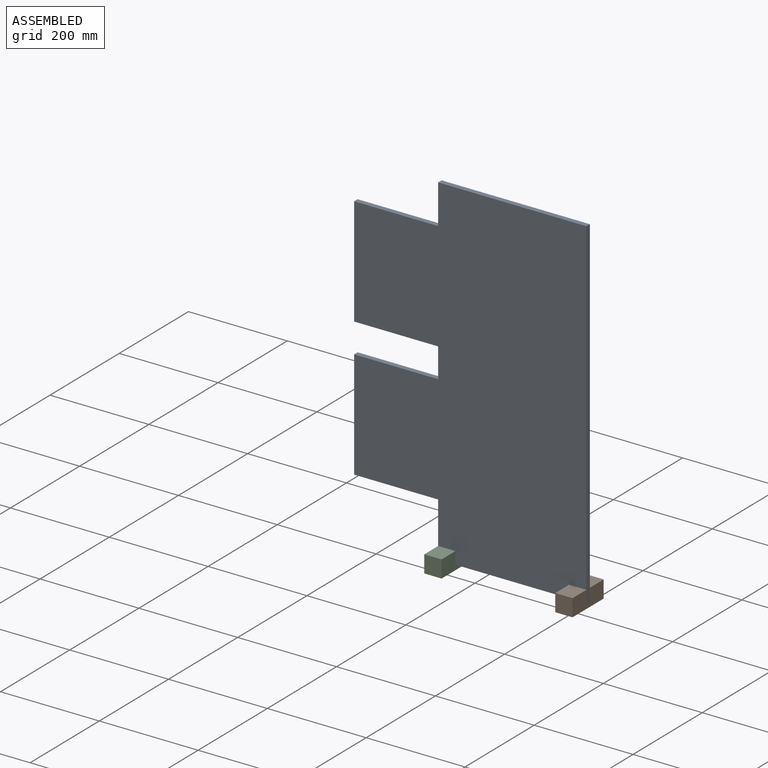
[diagram: assembled view]
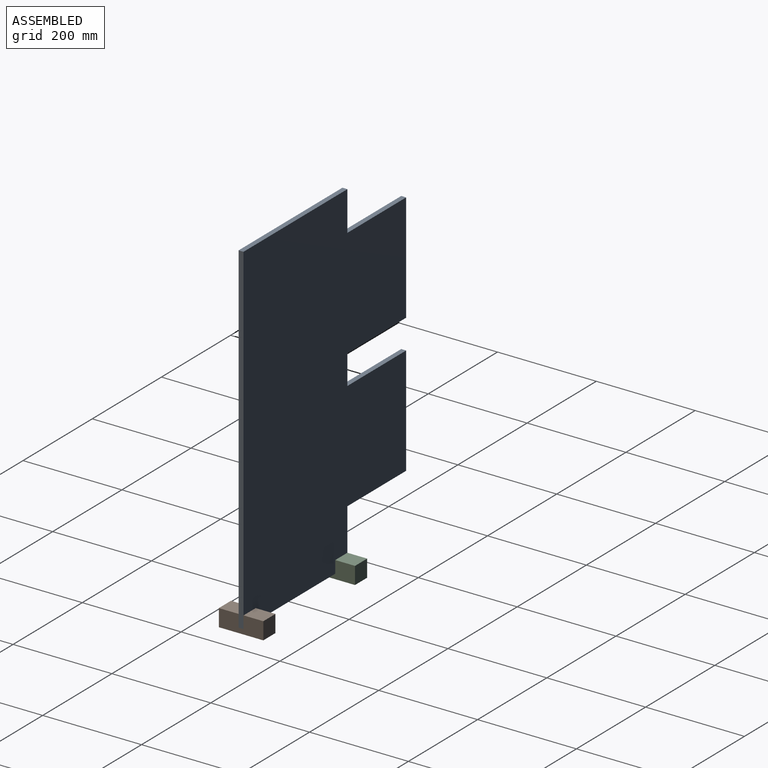
[diagram: assembled view, second angle]
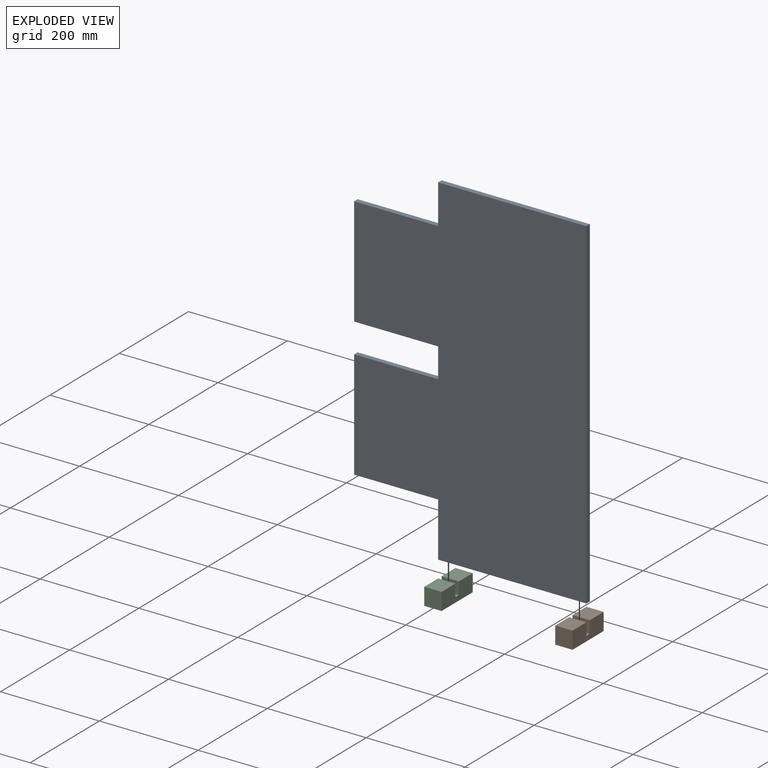
[diagram: exploded view]
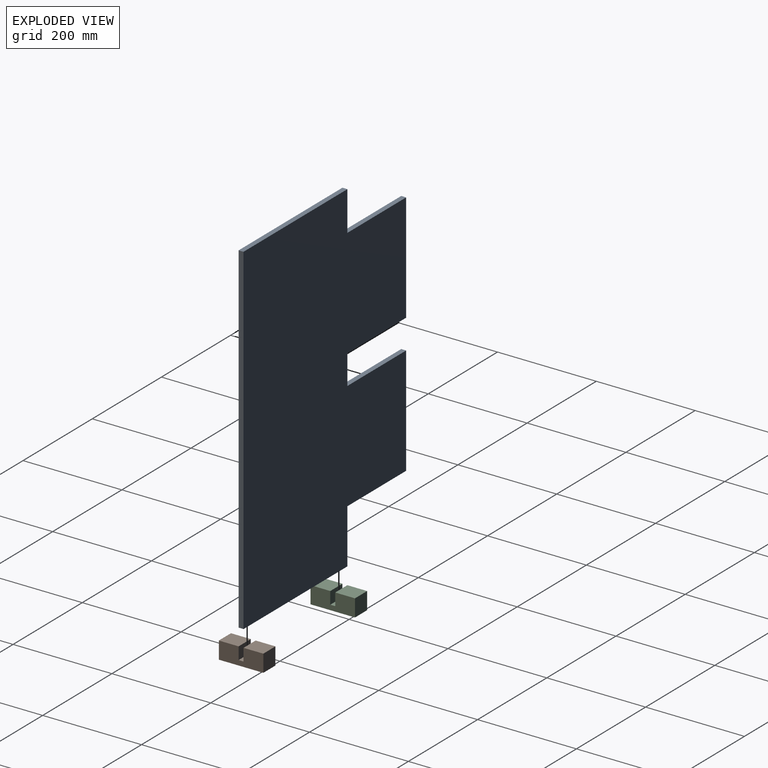
[diagram: exploded view, second angle]
ASSEMBLY  parts=3 mates=2
PART A: 14 faces, bbox 470x10x690 mm
  f0: plane 690x470mm, normal (0,1,0), area 281800mm2, adj f1,f3,f4,f5,f6,f7,f8,f9
  f1: plane 220x10mm, normal (-1,0,0), area 2200mm2, adj f0,f2,f11,f12
  f2: plane 690x470mm, normal (0,-1,0), area 281800mm2, adj f1,f3,f4,f5,f6,f7,f8,f9
  f3: plane 220x10mm, normal (-1,0,0), area 2200mm2, adj f0,f2,f8,f9
  f4: plane 300x10mm, normal (0,0,-1), area 3000mm2, adj f0,f2,f5,f7
  f5: plane 690x10mm, normal (1,0,0), area 6900mm2, adj f0,f2,f4,f6
  f6: plane 300x10mm, normal (0,0,1), area 3000mm2, adj f0,f2,f5,f13
  f7: plane 110x10mm, normal (-1,0,0), area 1100mm2, adj f0,f2,f4,f8
  f8: plane 170x10mm, normal (0,0,-1), area 1700mm2, adj f0,f2,f3,f7
  f9: plane 170x10mm, normal (0,0,1), area 1700mm2, adj f0,f2,f3,f10
  f10: plane 60x10mm, normal (-1,0,0), area 600mm2, adj f0,f2,f9,f11
  f11: plane 170x10mm, normal (0,0,-1), area 1700mm2, adj f0,f1,f2,f10
  f12: plane 170x10mm, normal (0,0,1), area 1700mm2, adj f0,f1,f2,f13
  f13: plane 80x10mm, normal (-1,0,0), area 800mm2, adj f0,f2,f6,f12
PART B: 10 faces, bbox 35x90x35 mm
  f0: plane 40x35mm, normal (0,0,1), area 1400mm2, adj f1,f2,f5,f9
  f1: plane 90x35mm, normal (-1,0,0), area 2900mm2, adj f0,f3,f4,f5,f6,f7,f8,f9
  f2: plane 90x35mm, normal (1,0,0), area 2900mm2, adj f0,f3,f4,f5,f6,f7,f8,f9
  f3: plane 90x35mm, normal (0,0,-1), area 3150mm2, adj f1,f2,f5,f6
  f4: plane 40x35mm, normal (0,0,1), area 1400mm2, adj f1,f2,f6,f7
  f5: plane 35x35mm, normal (0,1,0), area 1225mm2, adj f0,f1,f2,f3
  f6: plane 35x35mm, normal (0,-1,0), area 1225mm2, adj f1,f2,f3,f4
  f7: plane 35x25mm, normal (0,1,0), area 875mm2, adj f1,f2,f4,f8
  f8: plane 35x10mm, normal (0,0,1), area 350mm2, adj f1,f2,f7,f9
  f9: plane 35x25mm, normal (0,-1,0), area 875mm2, adj f0,f1,f2,f8
PART C: same geometry as B
PLACE A t=(-119.64,31.76,118.59)mm
PLACE B t=(315.36,26.76,108.59)mm
PLACE C t=(50.36,26.76,108.59)mm
MATE fastened B.f8 <-> A.f4  axis (0,0,1) through (350.36,31.76,118.59)mm
MATE fastened C.f8 <-> A.f4  axis (0,0,-1) through (50.36,31.76,118.59)mm
